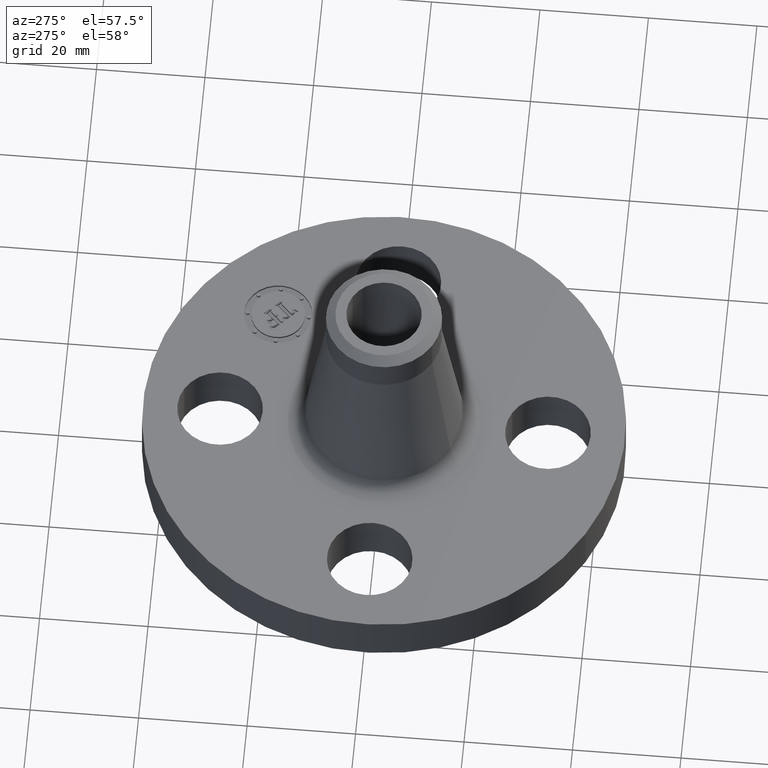
[diagram: clean part render]
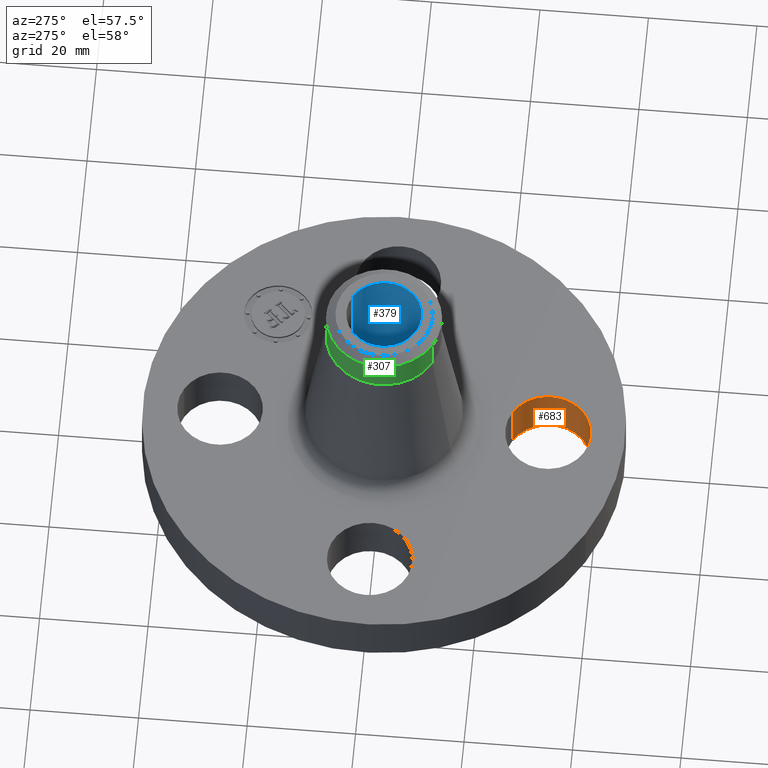
[diagram: same view with three faces highlighted in distinct colors, each labeled with its STEP entity id]
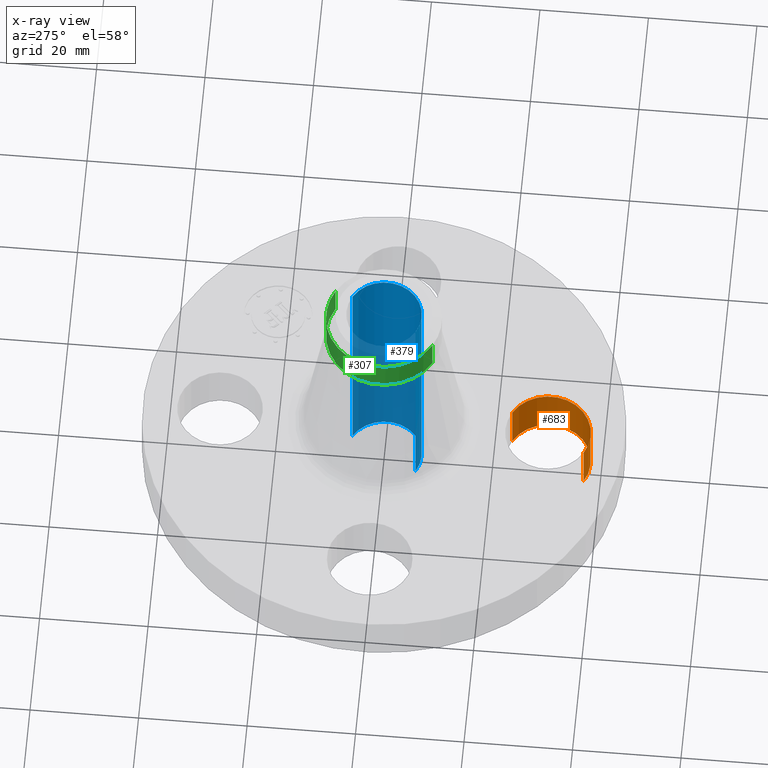
[diagram: x-ray of the same camera — body ghosted, the three highlighted faces saturated]
A machine part, auxiliary view with three faces highlighted in distinct colors.
The next image is the same camera in x-ray (body ghosted, the three faces saturated) — at least one of them is partly hidden behind the body in this view.
Their STEP definitions:

[orange] entity #683 — the highlighted cylindrical surface (partial cylindrical patch) has radius 7.874 mm, axis along (0, -0, -1).
#514=AXIS2_PLACEMENT_3D('Circle Axis2P3D',#512,#513,$) ;
#656=AXIS2_PLACEMENT_3D('Cylinder Axis2P3D',#653,#654,#655) ;
#674=AXIS2_PLACEMENT_3D('Circle Axis2P3D',#672,#673,$) ;
#512=CARTESIAN_POINT('Axis2P3D Location',(1.39870617276E-016,-1.19,0.)) ;
#516=CARTESIAN_POINT('Vertex',(0.148621916968,-0.917949405818,0.)) ;
#518=CARTESIAN_POINT('Vertex',(-0.148621916968,-1.46205059419,-6.99353086378E-017)) ;
#653=CARTESIAN_POINT('Axis2P3D Location',(-6.70041327261E-017,-1.19,0.376062992128)) ;
#658=CARTESIAN_POINT('Line Origine',(0.148621916968,-0.917949405818,0.190000000001)) ;
#662=CARTESIAN_POINT('Vertex',(0.148621916968,-0.917949405818,0.380000000002)) ;
#665=CARTESIAN_POINT('Line Origine',(-0.148621916968,-1.46205059419,0.190000000001)) ;
#669=CARTESIAN_POINT('Vertex',(-0.148621916968,-1.46205059419,0.380000000002)) ;
#672=CARTESIAN_POINT('Axis2P3D Location',(-6.70041327261E-017,-1.19,0.380000000002)) ;
#513=DIRECTION('Axis2P3D Direction',(0.,0.,-0.0393700787402)) ;
#654=DIRECTION('Axis2P3D Direction',(0.,-0.,-0.0393700787402)) ;
#655=DIRECTION('Axis2P3D XDirection',(-0.0188750212049,-0.0345504945626,0.)) ;
#659=DIRECTION('Vector Direction',(0.,0.,-0.0393700787402)) ;
#666=DIRECTION('Vector Direction',(0.,0.,-0.0393700787402)) ;
#673=DIRECTION('Axis2P3D Direction',(0.,-0.,-0.0393700787402)) ;
#660=VECTOR('Line Direction',#659,0.0393700787402) ;
#667=VECTOR('Line Direction',#666,0.0393700787402) ;
#678=ORIENTED_EDGE('',*,*,#664,.F.) ;
#679=ORIENTED_EDGE('',*,*,#520,.T.) ;
#680=ORIENTED_EDGE('',*,*,#671,.T.) ;
#681=ORIENTED_EDGE('',*,*,#676,.F.) ;
#683=ADVANCED_FACE('PartBody',(#682),#657,.F.) ;
#515=CIRCLE('generated circle',#514,0.310000000001) ;
#675=CIRCLE('generated circle',#674,0.310000000001) ;
#657=CYLINDRICAL_SURFACE('generated cylinder',#656,0.310000000001) ;
#520=EDGE_CURVE('',#517,#519,#515,.T.) ;
#664=EDGE_CURVE('',#517,#663,#661,.F.) ;
#671=EDGE_CURVE('',#519,#670,#668,.F.) ;
#676=EDGE_CURVE('',#663,#670,#675,.T.) ;
#677=EDGE_LOOP('',(#678,#679,#680,#681)) ;
#682=FACE_OUTER_BOUND('',#677,.T.) ;
#661=LINE('Line',#658,#660) ;
#668=LINE('Line',#665,#667) ;
#517=VERTEX_POINT('',#516) ;
#519=VERTEX_POINT('',#518) ;
#663=VERTEX_POINT('',#662) ;
#670=VERTEX_POINT('',#669) ;

[blue] entity #379 — the highlighted cylindrical surface (partial cylindrical patch) has radius 6.9342 mm, axis along (0, 0, -1).
#343=AXIS2_PLACEMENT_3D('Cylinder Axis2P3D',#340,#341,#342) ;
#347=AXIS2_PLACEMENT_3D('Circle Axis2P3D',#345,#346,$) ;
#363=AXIS2_PLACEMENT_3D('Circle Axis2P3D',#361,#362,$) ;
#340=CARTESIAN_POINT('Axis2P3D Location',(0.,0.,0.873750000003)) ;
#345=CARTESIAN_POINT('Axis2P3D Location',(0.,0.,1.81000000001)) ;
#349=CARTESIAN_POINT('Vertex',(0.130883172039,0.239580039397,1.81000000001)) ;
#351=CARTESIAN_POINT('Vertex',(-0.130883172039,-0.239580039397,1.81000000001)) ;
#354=CARTESIAN_POINT('Line Origine',(0.130883172039,0.239580039397,0.873750000003)) ;
#358=CARTESIAN_POINT('Vertex',(0.130883172039,0.239580039397,-0.0625000000003)) ;
#361=CARTESIAN_POINT('Axis2P3D Location',(0.,0.,-0.0625000000003)) ;
#365=CARTESIAN_POINT('Vertex',(-0.130883172039,-0.239580039397,-0.0625000000003)) ;
#368=CARTESIAN_POINT('Line Origine',(-0.130883172039,-0.239580039397,0.873750000003)) ;
#341=DIRECTION('Axis2P3D Direction',(0.,0.,-0.0393700787402)) ;
#342=DIRECTION('Axis2P3D XDirection',(-0.0188750212049,-0.0345504945626,0.)) ;
#346=DIRECTION('Axis2P3D Direction',(0.,0.,-0.0393700787402)) ;
#355=DIRECTION('Vector Direction',(0.,0.,-0.0393700787402)) ;
#362=DIRECTION('Axis2P3D Direction',(0.,0.,-0.0393700787402)) ;
#369=DIRECTION('Vector Direction',(0.,0.,-0.0393700787402)) ;
#356=VECTOR('Line Direction',#355,0.0393700787402) ;
#370=VECTOR('Line Direction',#369,0.0393700787402) ;
#374=ORIENTED_EDGE('',*,*,#353,.F.) ;
#375=ORIENTED_EDGE('',*,*,#360,.T.) ;
#376=ORIENTED_EDGE('',*,*,#367,.T.) ;
#377=ORIENTED_EDGE('',*,*,#372,.F.) ;
#379=ADVANCED_FACE('PartBody',(#378),#344,.F.) ;
#348=CIRCLE('generated circle',#347,0.273000000001) ;
#364=CIRCLE('generated circle',#363,0.273000000001) ;
#344=CYLINDRICAL_SURFACE('generated cylinder',#343,0.273000000001) ;
#353=EDGE_CURVE('',#350,#352,#348,.T.) ;
#360=EDGE_CURVE('',#350,#359,#357,.T.) ;
#367=EDGE_CURVE('',#359,#366,#364,.T.) ;
#372=EDGE_CURVE('',#352,#366,#371,.T.) ;
#373=EDGE_LOOP('',(#374,#375,#376,#377)) ;
#378=FACE_OUTER_BOUND('',#373,.T.) ;
#357=LINE('Line',#354,#356) ;
#371=LINE('Line',#368,#370) ;
#350=VERTEX_POINT('',#349) ;
#352=VERTEX_POINT('',#351) ;
#359=VERTEX_POINT('',#358) ;
#366=VERTEX_POINT('',#365) ;

[green] entity #307 — the highlighted cylindrical surface (partial cylindrical patch) has radius 10.668 mm, axis along (0, 0, -1).
#239=AXIS2_PLACEMENT_3D('Circle Axis2P3D',#237,#238,$) ;
#252=AXIS2_PLACEMENT_3D('Cylinder Axis2P3D',#249,#250,#251) ;
#290=AXIS2_PLACEMENT_3D('Circle Axis2P3D',#288,#289,$) ;
#297=AXIS2_PLACEMENT_3D('Circle Axis2P3D',#295,#296,$) ;
#215=CARTESIAN_POINT('Vertex',(0.201358726215,0.368584675995,1.52140190821)) ;
#222=CARTESIAN_POINT('Vertex',(-0.201358726215,-0.368584675995,1.52140190821)) ;
#237=CARTESIAN_POINT('Axis2P3D Location',(0.,0.,1.52140190821)) ;
#249=CARTESIAN_POINT('Axis2P3D Location',(0.,0.,0.873750000003)) ;
#254=CARTESIAN_POINT('Line Origine',(-0.201358726215,-0.368584675995,1.63951214443)) ;
#258=CARTESIAN_POINT('Vertex',(-0.201358726215,-0.368584675995,1.75762238065)) ;
#261=CARTESIAN_POINT('Line Origine',(0.201358726215,0.368584675995,1.63951214443)) ;
#265=CARTESIAN_POINT('Vertex',(0.201358726215,0.368584675995,1.75762238065)) ;
#288=CARTESIAN_POINT('Axis2P3D Location',(0.,0.,1.75762238065)) ;
#292=CARTESIAN_POINT('Vertex',(-0.201358726215,0.368584675995,1.75762238065)) ;
#295=CARTESIAN_POINT('Axis2P3D Location',(0.,0.,1.75762238065)) ;
#238=DIRECTION('Axis2P3D Direction',(0.,0.,-0.0393700787402)) ;
#250=DIRECTION('Axis2P3D Direction',(0.,0.,-0.0393700787402)) ;
#251=DIRECTION('Axis2P3D XDirection',(-0.0188750212049,-0.0345504945626,0.)) ;
#255=DIRECTION('Vector Direction',(0.,0.,-0.0393700787402)) ;
#262=DIRECTION('Vector Direction',(0.,0.,-0.0393700787402)) ;
#289=DIRECTION('Axis2P3D Direction',(0.,0.,-0.0393700787402)) ;
#296=DIRECTION('Axis2P3D Direction',(0.,0.,-0.0393700787402)) ;
#256=VECTOR('Line Direction',#255,0.0393700787402) ;
#263=VECTOR('Line Direction',#262,0.0393700787402) ;
#301=ORIENTED_EDGE('',*,*,#267,.F.) ;
#302=ORIENTED_EDGE('',*,*,#241,.F.) ;
#303=ORIENTED_EDGE('',*,*,#260,.T.) ;
#304=ORIENTED_EDGE('',*,*,#294,.F.) ;
#305=ORIENTED_EDGE('',*,*,#299,.T.) ;
#307=ADVANCED_FACE('PartBody',(#306),#253,.T.) ;
#240=CIRCLE('generated circle',#239,0.420000000002) ;
#291=CIRCLE('generated circle',#290,0.420000000002) ;
#298=CIRCLE('generated circle',#297,0.420000000002) ;
#253=CYLINDRICAL_SURFACE('generated cylinder',#252,0.420000000002) ;
#241=EDGE_CURVE('',#223,#216,#240,.T.) ;
#260=EDGE_CURVE('',#223,#259,#257,.F.) ;
#267=EDGE_CURVE('',#216,#266,#264,.F.) ;
#294=EDGE_CURVE('',#293,#259,#291,.F.) ;
#299=EDGE_CURVE('',#293,#266,#298,.T.) ;
#300=EDGE_LOOP('',(#301,#302,#303,#304,#305)) ;
#306=FACE_OUTER_BOUND('',#300,.T.) ;
#257=LINE('Line',#254,#256) ;
#264=LINE('Line',#261,#263) ;
#216=VERTEX_POINT('',#215) ;
#223=VERTEX_POINT('',#222) ;
#259=VERTEX_POINT('',#258) ;
#266=VERTEX_POINT('',#265) ;
#293=VERTEX_POINT('',#292) ;